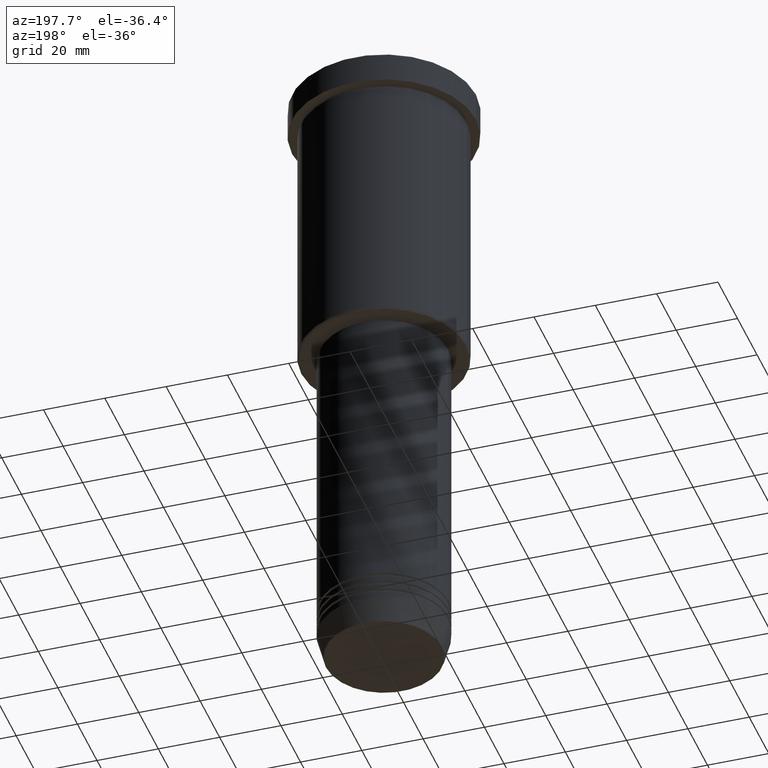
[diagram: clean part render]
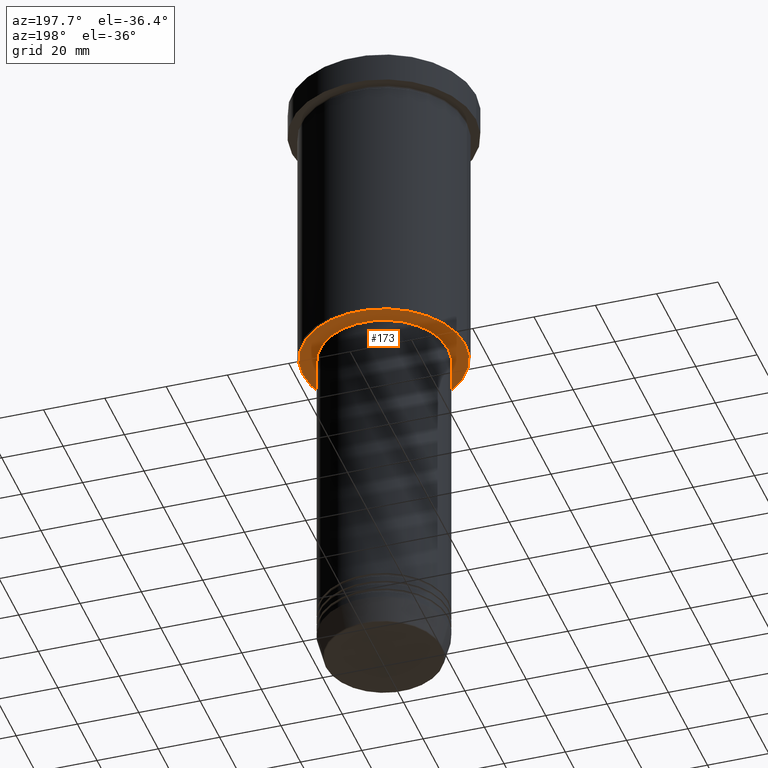
[diagram: same view with one face highlighted and labeled with its STEP entity id]
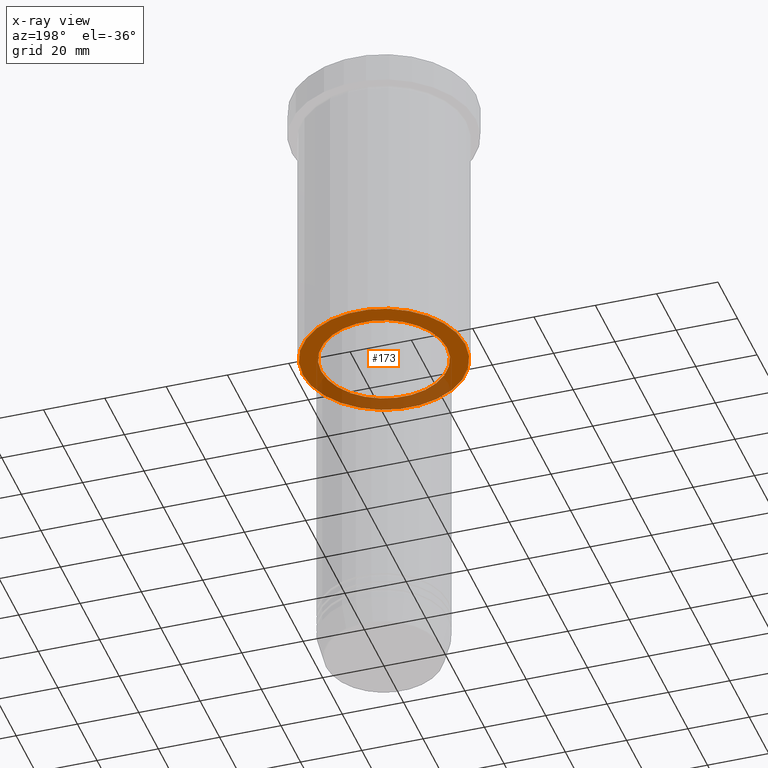
[diagram: x-ray of the same camera — body ghosted, the highlighted face saturated]
A machine part, auxiliary view. The second image highlights one B-rep face of the part: STEP entity #173.
The next image is the same camera in x-ray: the body ghosted, the highlighted face saturated — about 32% of this face is hidden behind the body in this view.
In plain terms, the highlighted planar face has unit normal (0, 0, -1).
Its self-contained STEP definition (entity closure, byte-faithful):
#31 = DIRECTION ( 'NONE',  ( -0.000000000000000000, -0.000000000000000000, 1.000000000000000000 ) ) ;
#40 = VERTEX_POINT ( 'NONE', #1052 ) ;
#43 = DIRECTION ( 'NONE',  ( 1.000000000000000000, 0.000000000000000000, 0.000000000000000000 ) ) ;
#81 = CARTESIAN_POINT ( 'NONE',  ( 0.000000000000000000, 27.00000000000000355, -96.00000000000000000 ) ) ;
#98 = DIRECTION ( 'NONE',  ( 1.000000000000000000, 0.000000000000000000, 0.000000000000000000 ) ) ;
#115 = CARTESIAN_POINT ( 'NONE',  ( 0.000000000000000000, 0.000000000000000000, -96.00000000000000000 ) ) ;
#173 = ADVANCED_FACE ( 'NONE', ( #714, #812 ), #898, .T. ) ;
#208 = CARTESIAN_POINT ( 'NONE',  ( -20.50000000000000000, 2.510525938252074481E-15, -96.00000000000000000 ) ) ;
#242 = VERTEX_POINT ( 'NONE', #1003 ) ;
#256 = EDGE_CURVE ( 'NONE', #242, #257, #491, .T. ) ;
#257 = VERTEX_POINT ( 'NONE', #208 ) ;
#264 = AXIS2_PLACEMENT_3D ( 'NONE', #81, #362, #720 ) ;
#297 = CIRCLE ( 'NONE', #666, 26.49999999999991118 ) ;
#302 = AXIS2_PLACEMENT_3D ( 'NONE', #829, #31, #98 ) ;
#309 = DIRECTION ( 'NONE',  ( -0.000000000000000000, -0.000000000000000000, 1.000000000000000000 ) ) ;
#312 = ORIENTED_EDGE ( 'NONE', *, *, #256, .T. ) ;
#334 = VERTEX_POINT ( 'NONE', #522 ) ;
#362 = DIRECTION ( 'NONE',  ( 0.000000000000000000, 0.000000000000000000, -1.000000000000000000 ) ) ;
#426 = DIRECTION ( 'NONE',  ( 0.000000000000000000, 0.000000000000000000, -1.000000000000000000 ) ) ;
#449 = ORIENTED_EDGE ( 'NONE', *, *, #1092, .T. ) ;
#461 = ORIENTED_EDGE ( 'NONE', *, *, #1082, .T. ) ;
#474 = DIRECTION ( 'NONE',  ( 0.000000000000000000, 0.000000000000000000, -1.000000000000000000 ) ) ;
#491 = CIRCLE ( 'NONE', #302, 20.50000000000000000 ) ;
#522 = CARTESIAN_POINT ( 'NONE',  ( 26.49999999999991118, 0.000000000000000000, -96.00000000000000000 ) ) ;
#581 = DIRECTION ( 'NONE',  ( -1.000000000000000000, 0.000000000000000000, 0.000000000000000000 ) ) ;
#666 = AXIS2_PLACEMENT_3D ( 'NONE', #115, #474, #846 ) ;
#714 = FACE_OUTER_BOUND ( 'NONE', #1032, .T. ) ;
#720 = DIRECTION ( 'NONE',  ( -1.000000000000000000, 0.000000000000000000, -0.000000000000000000 ) ) ;
#750 = ORIENTED_EDGE ( 'NONE', *, *, #777, .T. ) ;
#758 = AXIS2_PLACEMENT_3D ( 'NONE', #868, #426, #581 ) ;
#777 = EDGE_CURVE ( 'NONE', #40, #334, #297, .T. ) ;
#812 = FACE_BOUND ( 'NONE', #1076, .T. ) ;
#829 = CARTESIAN_POINT ( 'NONE',  ( 0.000000000000000000, 0.000000000000000000, -96.00000000000000000 ) ) ;
#846 = DIRECTION ( 'NONE',  ( -1.000000000000000000, 0.000000000000000000, 0.000000000000000000 ) ) ;
#852 = CIRCLE ( 'NONE', #986, 20.50000000000000000 ) ;
#868 = CARTESIAN_POINT ( 'NONE',  ( 0.000000000000000000, 0.000000000000000000, -96.00000000000000000 ) ) ;
#898 = PLANE ( 'NONE',  #264 ) ;
#986 = AXIS2_PLACEMENT_3D ( 'NONE', #1125, #309, #43 ) ;
#1003 = CARTESIAN_POINT ( 'NONE',  ( 20.50000000000000000, 0.000000000000000000, -96.00000000000000000 ) ) ;
#1032 = EDGE_LOOP ( 'NONE', ( #461, #750 ) ) ;
#1040 = CIRCLE ( 'NONE', #758, 26.49999999999991118 ) ;
#1052 = CARTESIAN_POINT ( 'NONE',  ( -26.49999999999991118, 3.275930187719164819E-15, -96.00000000000000000 ) ) ;
#1076 = EDGE_LOOP ( 'NONE', ( #312, #449 ) ) ;
#1082 = EDGE_CURVE ( 'NONE', #334, #40, #1040, .T. ) ;
#1092 = EDGE_CURVE ( 'NONE', #257, #242, #852, .T. ) ;
#1125 = CARTESIAN_POINT ( 'NONE',  ( 0.000000000000000000, 0.000000000000000000, -96.00000000000000000 ) ) ;